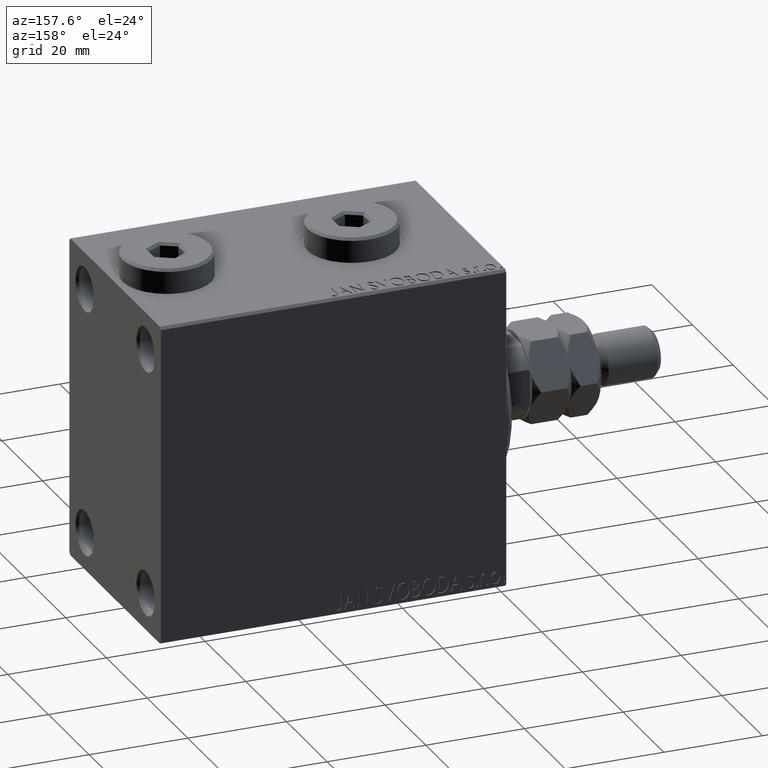
[diagram: clean part render]
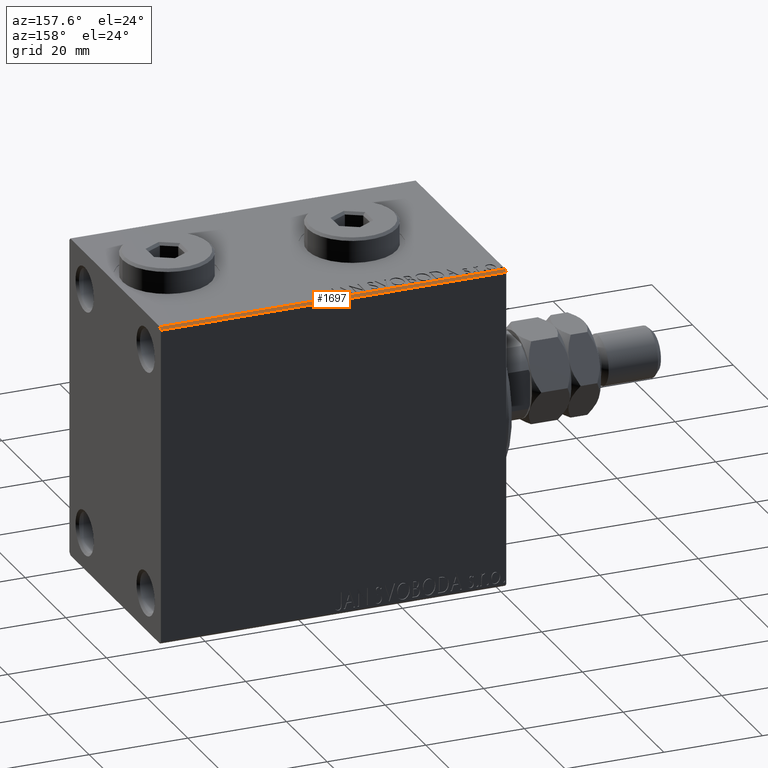
[diagram: same view with one face highlighted and labeled with its STEP entity id]
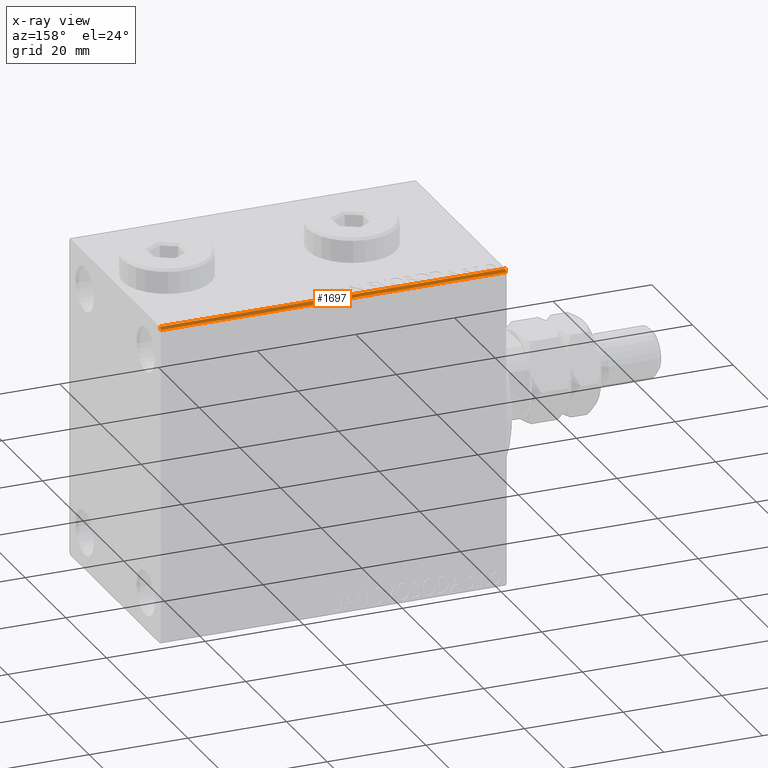
[diagram: x-ray of the same camera — body ghosted, the highlighted face saturated]
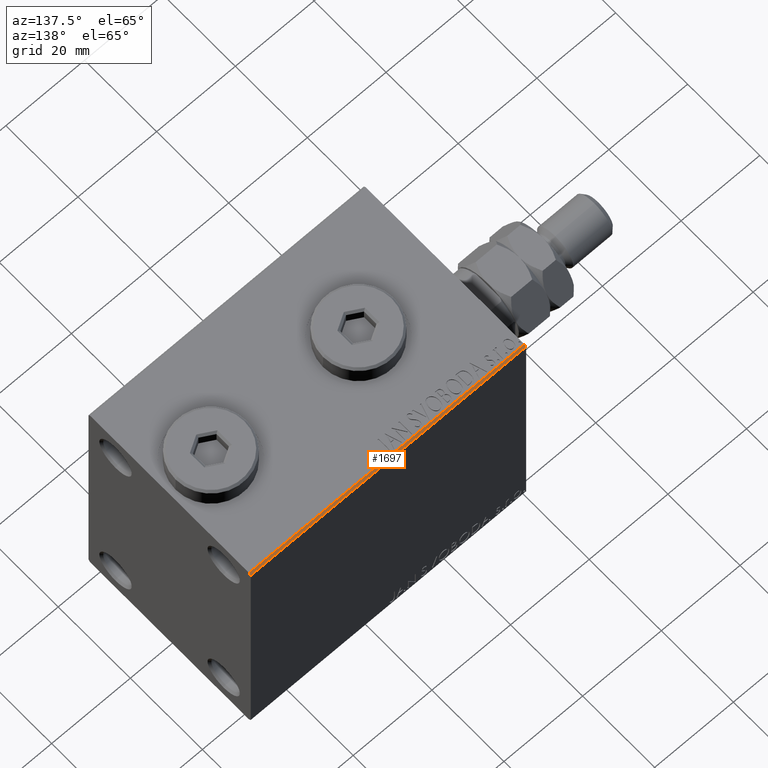
[diagram: same view with one face highlighted and labeled with its STEP entity id]
A machine part, auxiliary view. The second image highlights one B-rep face of the part: STEP entity #1697.
The next image is the same camera in x-ray: the body ghosted, the highlighted face saturated — about 0% of this face is hidden behind the body in this view.
A second angle (auxiliary view) of the same face is appended — the face is thin or edge-on in the first view.
In plain terms, the highlighted planar face has unit normal (-0, -0.7071, -0.7071).
Its self-contained STEP definition (entity closure, byte-faithful):
#1007 = LINE ( 'NONE', #26314, #19560 ) ;
#1697 = ADVANCED_FACE ( 'NONE', ( #11146 ), #33553, .F. ) ;
#2169 = DIRECTION ( 'NONE',  ( 1.000000000000000000, 0.000000000000000000, 0.000000000000000000 ) ) ;
#3677 = ORIENTED_EDGE ( 'NONE', *, *, #21192, .F. ) ;
#5767 = VERTEX_POINT ( 'NONE', #26425 ) ;
#5773 = VECTOR ( 'NONE', #2169, 1000.000000000000000 ) ;
#6473 = EDGE_CURVE ( 'NONE', #35402, #33749, #1007, .T. ) ;
#7340 = ORIENTED_EDGE ( 'NONE', *, *, #27355, .F. ) ;
#8038 = LINE ( 'NONE', #22597, #30245 ) ;
#8187 = DIRECTION ( 'NONE',  ( -0.000000000000000000, -0.7071067811865574537, 0.7071067811865376918 ) ) ;
#10806 = CARTESIAN_POINT ( 'NONE',  ( 70.00000000000000000, 21.99999999999998579, 32.49999999999999289 ) ) ;
#11146 = FACE_OUTER_BOUND ( 'NONE', #24716, .T. ) ;
#14676 = ORIENTED_EDGE ( 'NONE', *, *, #28889, .F. ) ;
#14959 = DIRECTION ( 'NONE',  ( -1.000000000000000000, 0.000000000000000000, 0.000000000000000000 ) ) ;
#17906 = VERTEX_POINT ( 'NONE', #32131 ) ;
#18858 = CARTESIAN_POINT ( 'NONE',  ( 0.000000000000000000, 21.99999999999998579, 32.49999999999999289 ) ) ;
#19560 = VECTOR ( 'NONE', #8187, 999.9999999999998863 ) ;
#21192 = EDGE_CURVE ( 'NONE', #5767, #35402, #37715, .T. ) ;
#22597 = CARTESIAN_POINT ( 'NONE',  ( 70.00000000000000000, 21.99999999999998579, 32.49999999999999289 ) ) ;
#24653 = ORIENTED_EDGE ( 'NONE', *, *, #6473, .F. ) ;
#24716 = EDGE_LOOP ( 'NONE', ( #24653, #3677, #14676, #7340 ) ) ;
#25692 = CARTESIAN_POINT ( 'NONE',  ( 70.00000000000000000, 21.99999999999998579, 32.49999999999999289 ) ) ;
#26165 = DIRECTION ( 'NONE',  ( -0.000000000000000000, -0.7071067811865376918, -0.7071067811865573427 ) ) ;
#26248 = AXIS2_PLACEMENT_3D ( 'NONE', #25692, #26165, #14959 ) ;
#26314 = CARTESIAN_POINT ( 'NONE',  ( 70.00000000000000000, 27.24999999999968026, 27.25000000000044054 ) ) ;
#26425 = CARTESIAN_POINT ( 'NONE',  ( 0.000000000000000000, 22.50000000000000000, 31.99999999999999289 ) ) ;
#27355 = EDGE_CURVE ( 'NONE', #33749, #17906, #8038, .T. ) ;
#28889 = EDGE_CURVE ( 'NONE', #17906, #5767, #30050, .T. ) ;
#30050 = LINE ( 'NONE', #18858, #43959 ) ;
#30245 = VECTOR ( 'NONE', #37118, 1000.000000000000000 ) ;
#32131 = CARTESIAN_POINT ( 'NONE',  ( 0.000000000000000000, 21.99999999999998579, 32.49999999999999289 ) ) ;
#32443 = CARTESIAN_POINT ( 'NONE',  ( 70.00000000000000000, 22.50000000000000000, 31.99999999999999289 ) ) ;
#33553 = PLANE ( 'NONE',  #26248 ) ;
#33749 = VERTEX_POINT ( 'NONE', #10806 ) ;
#35402 = VERTEX_POINT ( 'NONE', #32443 ) ;
#37118 = DIRECTION ( 'NONE',  ( -1.000000000000000000, 0.000000000000000000, 0.000000000000000000 ) ) ;
#37715 = LINE ( 'NONE', #38197, #5773 ) ;
#38197 = CARTESIAN_POINT ( 'NONE',  ( 70.00000000000000000, 22.50000000000000000, 31.99999999999999289 ) ) ;
#43959 = VECTOR ( 'NONE', #44334, 999.9999999999998863 ) ;
#44334 = DIRECTION ( 'NONE',  ( -0.000000000000000000, 0.7071067811865574537, -0.7071067811865376918 ) ) ;